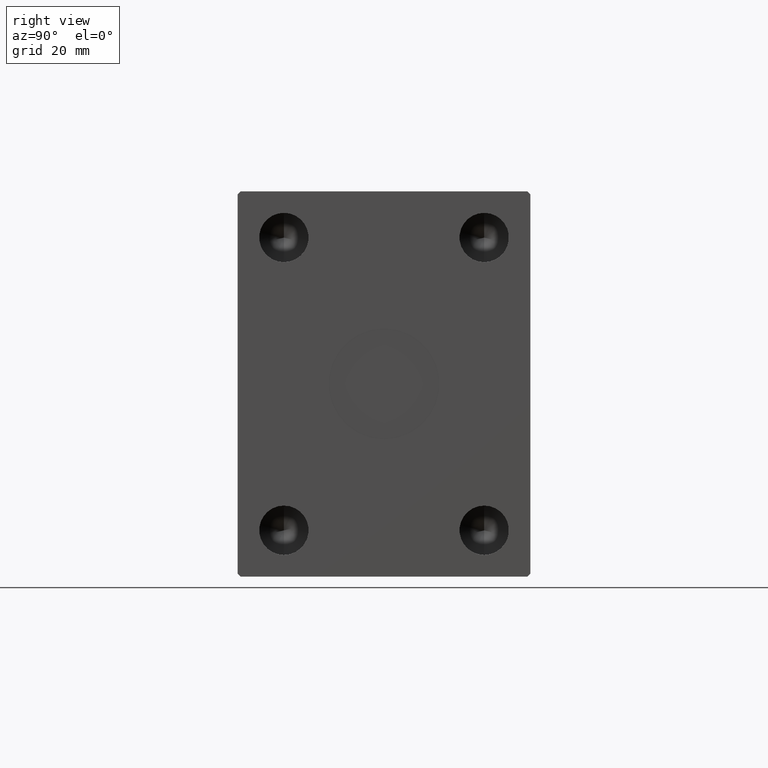
[diagram: clean part render]
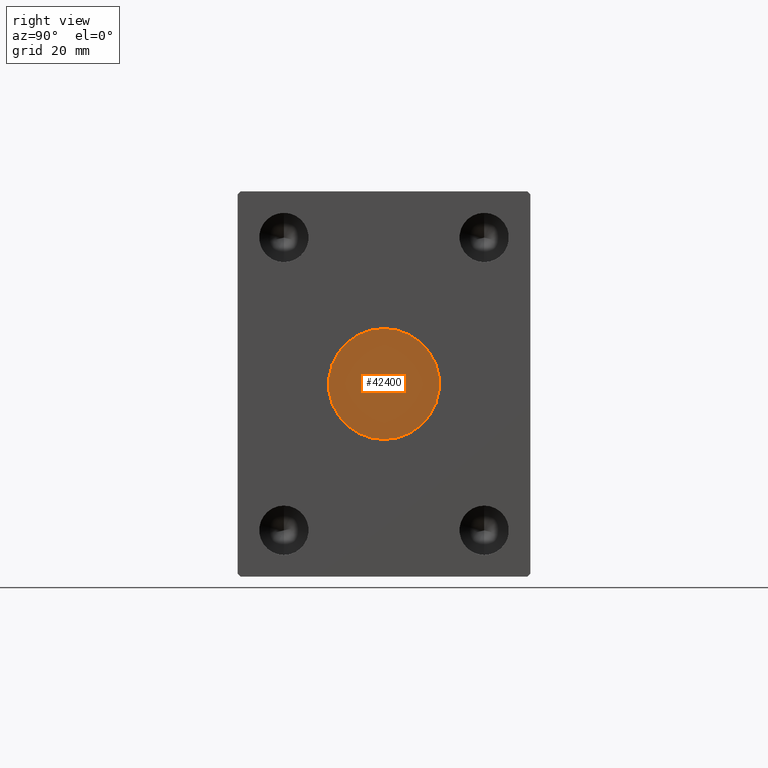
[diagram: same view with one face highlighted and labeled with its STEP entity id]
A machine part, right view. The second image highlights one B-rep face of the part: STEP entity #42400.
In plain terms, the highlighted planar face has unit normal (1, 0, 0).
Its self-contained STEP definition (entity closure, byte-faithful):
#4355 = CIRCLE ( 'NONE', #12230, 18.00000000000000000 ) ;
#5591 = AXIS2_PLACEMENT_3D ( 'NONE', #33328, #40242, #23489 ) ;
#6803 = PLANE ( 'NONE',  #43777 ) ;
#7310 = CARTESIAN_POINT ( 'NONE',  ( 120.7999999999999972, 0.000000000000000000, 0.000000000000000000 ) ) ;
#7397 = CARTESIAN_POINT ( 'NONE',  ( 120.7999999999999972, 0.000000000000000000, -18.00000000000000000 ) ) ;
#10663 = DIRECTION ( 'NONE',  ( 0.000000000000000000, 0.000000000000000000, -1.000000000000000000 ) ) ;
#12230 = AXIS2_PLACEMENT_3D ( 'NONE', #7310, #37682, #10663 ) ;
#16444 = CARTESIAN_POINT ( 'NONE',  ( 120.7999999999999972, 0.000000000000000000, 0.000000000000000000 ) ) ;
#16888 = FACE_OUTER_BOUND ( 'NONE', #30390, .T. ) ;
#19003 = VERTEX_POINT ( 'NONE', #7397 ) ;
#19635 = EDGE_CURVE ( 'NONE', #19003, #32849, #24898, .T. ) ;
#20447 = DIRECTION ( 'NONE',  ( 1.000000000000000000, 0.000000000000000000, 0.000000000000000000 ) ) ;
#20505 = CARTESIAN_POINT ( 'NONE',  ( 120.7999999999999972, 2.204364238465235428E-15, 18.00000000000000000 ) ) ;
#23489 = DIRECTION ( 'NONE',  ( 0.000000000000000000, 0.000000000000000000, -1.000000000000000000 ) ) ;
#24898 = CIRCLE ( 'NONE', #5591, 18.00000000000000000 ) ;
#28458 = ORIENTED_EDGE ( 'NONE', *, *, #19635, .T. ) ;
#30046 = DIRECTION ( 'NONE',  ( 0.000000000000000000, 0.000000000000000000, -1.000000000000000000 ) ) ;
#30390 = EDGE_LOOP ( 'NONE', ( #28458, #34012 ) ) ;
#31599 = EDGE_CURVE ( 'NONE', #32849, #19003, #4355, .T. ) ;
#32849 = VERTEX_POINT ( 'NONE', #20505 ) ;
#33328 = CARTESIAN_POINT ( 'NONE',  ( 120.7999999999999972, 0.000000000000000000, 0.000000000000000000 ) ) ;
#34012 = ORIENTED_EDGE ( 'NONE', *, *, #31599, .T. ) ;
#37682 = DIRECTION ( 'NONE',  ( 1.000000000000000000, 0.000000000000000000, 0.000000000000000000 ) ) ;
#40242 = DIRECTION ( 'NONE',  ( 1.000000000000000000, 0.000000000000000000, 0.000000000000000000 ) ) ;
#42400 = ADVANCED_FACE ( 'NONE', ( #16888 ), #6803, .T. ) ;
#43777 = AXIS2_PLACEMENT_3D ( 'NONE', #16444, #20447, #30046 ) ;